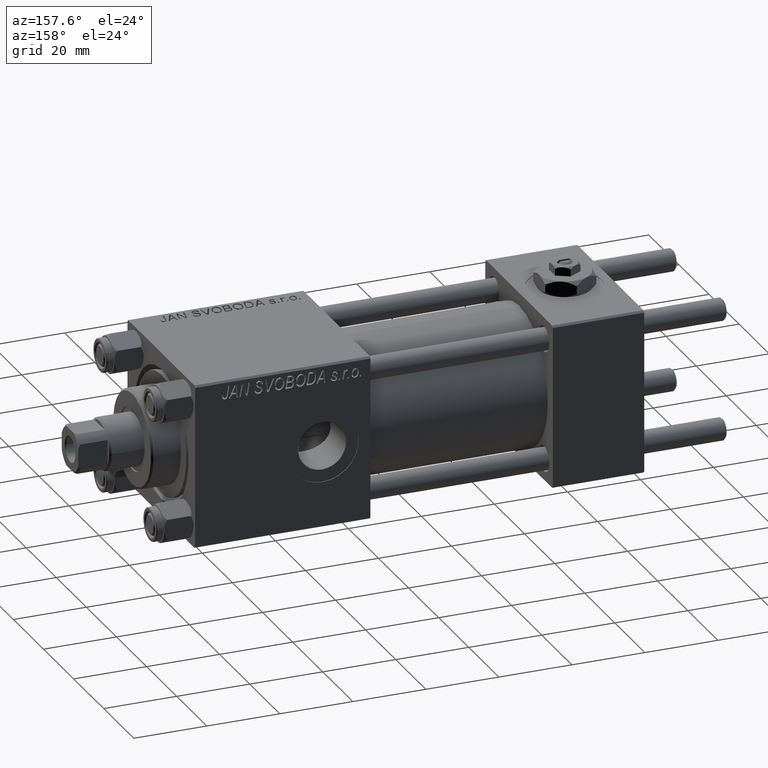
[diagram: clean part render]
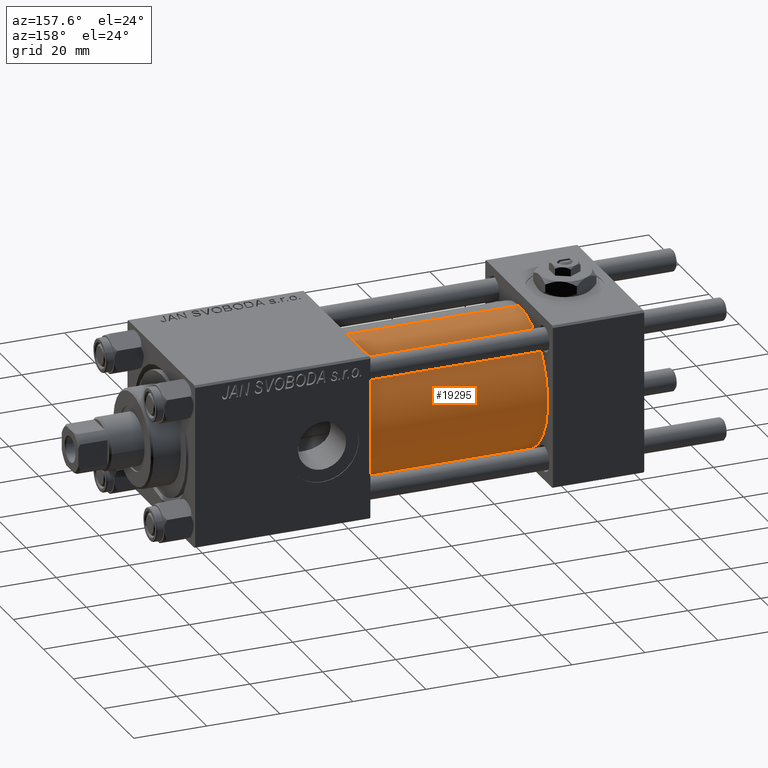
[diagram: same view with one face highlighted and labeled with its STEP entity id]
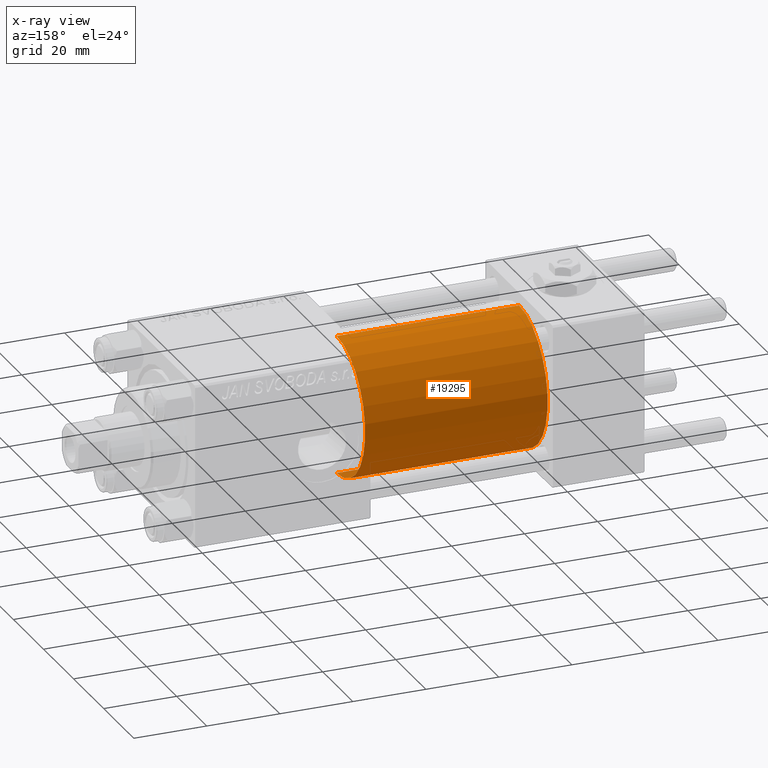
[diagram: x-ray of the same camera — body ghosted, the highlighted face saturated]
A machine part, auxiliary view. The second image highlights one B-rep face of the part: STEP entity #19295.
The next image is the same camera in x-ray: the body ghosted, the highlighted face saturated — about 0% of this face is hidden behind the body in this view.
In plain terms, the highlighted cylindrical surface (partial cylindrical patch) has radius 19 mm, axis along (-1, -0, -0).
Its self-contained STEP definition (entity closure, byte-faithful):
#1580 = DIRECTION ( 'NONE',  ( 0.000000000000000000, 0.000000000000000000, -1.000000000000000000 ) ) ;
#2077 = ORIENTED_EDGE ( 'NONE', *, *, #7071, .F. ) ;
#2281 = VERTEX_POINT ( 'NONE', #6110 ) ;
#2288 = DIRECTION ( 'NONE',  ( -1.000000000000000000, -0.000000000000000000, -0.000000000000000000 ) ) ;
#2511 = VECTOR ( 'NONE', #8130, 1000.000000000000000 ) ;
#3637 = VERTEX_POINT ( 'NONE', #37806 ) ;
#4035 = DIRECTION ( 'NONE',  ( 1.000000000000000000, -0.000000000000000000, 0.000000000000000000 ) ) ;
#6110 = CARTESIAN_POINT ( 'NONE',  ( 25.00000000000000000, 0.000000000000000000, 19.00000000000000000 ) ) ;
#7071 = EDGE_CURVE ( 'NONE', #25717, #3637, #46979, .T. ) ;
#8003 = ORIENTED_EDGE ( 'NONE', *, *, #46456, .T. ) ;
#8130 = DIRECTION ( 'NONE',  ( -1.000000000000000000, -0.000000000000000000, -0.000000000000000000 ) ) ;
#8683 = CARTESIAN_POINT ( 'NONE',  ( 25.00000000000000000, 2.326828918379970970E-15, -19.00000000000000000 ) ) ;
#8883 = CARTESIAN_POINT ( 'NONE',  ( 75.00000000000001421, 2.326828918379970970E-15, -19.00000000000000000 ) ) ;
#12255 = DIRECTION ( 'NONE',  ( 0.000000000000000000, 0.000000000000000000, 1.000000000000000000 ) ) ;
#15788 = CARTESIAN_POINT ( 'NONE',  ( 25.00000000000000000, 0.000000000000000000, 0.000000000000000000 ) ) ;
#16295 = AXIS2_PLACEMENT_3D ( 'NONE', #15788, #4035, #19956 ) ;
#19295 = ADVANCED_FACE ( 'NONE', ( #39907 ), #19564, .T. ) ;
#19301 = DIRECTION ( 'NONE',  ( -1.000000000000000000, -0.000000000000000000, -0.000000000000000000 ) ) ;
#19564 = CYLINDRICAL_SURFACE ( 'NONE', #48154, 19.00000000000000000 ) ;
#19926 = CARTESIAN_POINT ( 'NONE',  ( 75.00000000000001421, 0.000000000000000000, 19.00000000000000000 ) ) ;
#19956 = DIRECTION ( 'NONE',  ( 0.000000000000000000, 0.000000000000000000, 1.000000000000000000 ) ) ;
#21748 = EDGE_CURVE ( 'NONE', #3637, #2281, #34357, .T. ) ;
#22229 = EDGE_CURVE ( 'NONE', #25717, #48454, #36547, .T. ) ;
#23997 = CARTESIAN_POINT ( 'NONE',  ( 75.00000000000001421, 0.000000000000000000, 0.000000000000000000 ) ) ;
#25717 = VERTEX_POINT ( 'NONE', #40972 ) ;
#32461 = ORIENTED_EDGE ( 'NONE', *, *, #22229, .T. ) ;
#34357 = LINE ( 'NONE', #19926, #37480 ) ;
#36547 = LINE ( 'NONE', #8883, #2511 ) ;
#36600 = EDGE_LOOP ( 'NONE', ( #2077, #32461, #8003, #47751 ) ) ;
#37480 = VECTOR ( 'NONE', #2288, 1000.000000000000000 ) ;
#37806 = CARTESIAN_POINT ( 'NONE',  ( 75.00000000000001421, 0.000000000000000000, 19.00000000000000000 ) ) ;
#37838 = DIRECTION ( 'NONE',  ( 1.000000000000000000, 0.000000000000000000, 0.000000000000000000 ) ) ;
#39907 = FACE_OUTER_BOUND ( 'NONE', #36600, .T. ) ;
#40972 = CARTESIAN_POINT ( 'NONE',  ( 75.00000000000001421, 2.326828918379970970E-15, -19.00000000000000000 ) ) ;
#41195 = AXIS2_PLACEMENT_3D ( 'NONE', #41751, #37838, #1580 ) ;
#41751 = CARTESIAN_POINT ( 'NONE',  ( 75.00000000000001421, 0.000000000000000000, 0.000000000000000000 ) ) ;
#43805 = CIRCLE ( 'NONE', #16295, 19.00000000000000000 ) ;
#46456 = EDGE_CURVE ( 'NONE', #48454, #2281, #43805, .T. ) ;
#46979 = CIRCLE ( 'NONE', #41195, 19.00000000000000000 ) ;
#47751 = ORIENTED_EDGE ( 'NONE', *, *, #21748, .F. ) ;
#48154 = AXIS2_PLACEMENT_3D ( 'NONE', #23997, #19301, #12255 ) ;
#48454 = VERTEX_POINT ( 'NONE', #8683 ) ;